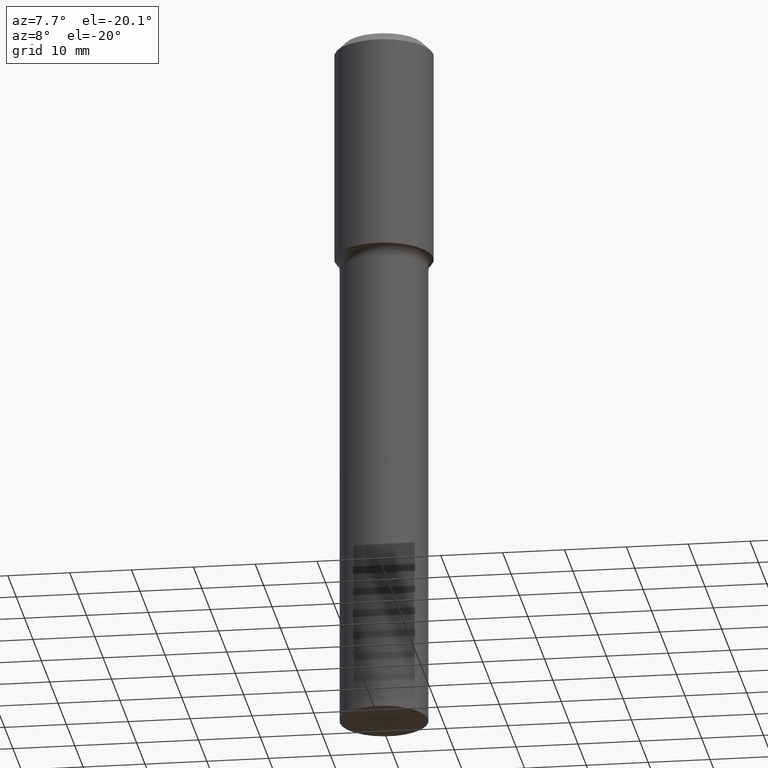
[diagram: clean part render]
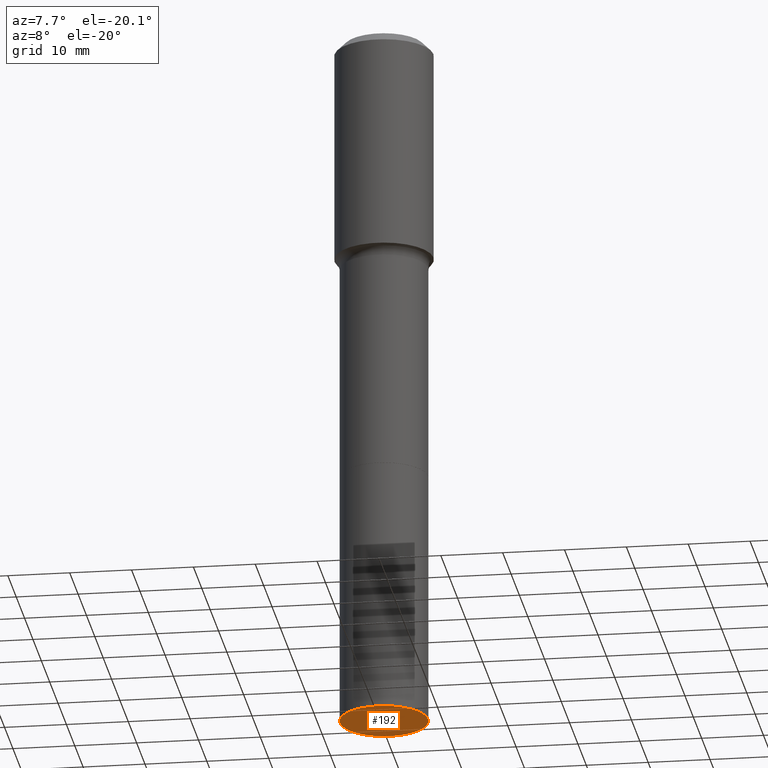
[diagram: same view with one face highlighted and labeled with its STEP entity id]
A machine part, auxiliary view. The second image highlights one B-rep face of the part: STEP entity #192.
In plain terms, the highlighted planar face has unit normal (0, -0, -1).
Its self-contained STEP definition (entity closure, byte-faithful):
#19 = AXIS2_PLACEMENT_3D ( 'NONE', #451, #206, #326 ) ;
#35 = EDGE_LOOP ( 'NONE', ( #113, #275 ) ) ;
#88 = CIRCLE ( 'NONE', #366, 0.2812500000000000000 ) ;
#113 = ORIENTED_EDGE ( 'NONE', *, *, #400, .F. ) ;
#116 = VERTEX_POINT ( 'NONE', #333 ) ;
#129 = EDGE_CURVE ( 'NONE', #116, #376, #88, .T. ) ;
#134 = DIRECTION ( 'NONE',  ( 1.000000000000000000, -6.982962677686269866E-15, 0.000000000000000000 ) ) ;
#139 = CARTESIAN_POINT ( 'NONE',  ( 1.107210456688382298E-28, -1.580803090974622389E-14, -4.527599999999999625 ) ) ;
#192 = ADVANCED_FACE ( 'NONE', ( #292 ), #252, .T. ) ;
#206 = DIRECTION ( 'NONE',  ( 2.438088387897960049E-29, -3.491481338843145188E-15, -1.000000000000000000 ) ) ;
#218 = CARTESIAN_POINT ( 'NONE',  ( 0.2812500000000000000, -1.777198916284548562E-14, -4.527599999999999625 ) ) ;
#221 = AXIS2_PLACEMENT_3D ( 'NONE', #509, #459, #467 ) ;
#252 = PLANE ( 'NONE',  #19 ) ;
#275 = ORIENTED_EDGE ( 'NONE', *, *, #129, .F. ) ;
#292 = FACE_OUTER_BOUND ( 'NONE', #35, .T. ) ;
#326 = DIRECTION ( 'NONE',  ( -1.000000000000000000, 6.982962677686265922E-15, -4.876176775795935793E-29 ) ) ;
#333 = CARTESIAN_POINT ( 'NONE',  ( -0.2812500000000000000, -1.095883495225551399E-14, -4.527599999999999625 ) ) ;
#365 = DIRECTION ( 'NONE',  ( -2.445468806185136597E-29, 3.491481338843145583E-15, 1.000000000000000000 ) ) ;
#366 = AXIS2_PLACEMENT_3D ( 'NONE', #139, #365, #134 ) ;
#376 = VERTEX_POINT ( 'NONE', #218 ) ;
#400 = EDGE_CURVE ( 'NONE', #376, #116, #477, .T. ) ;
#451 = CARTESIAN_POINT ( 'NONE',  ( 1.107210456688382298E-28, -1.580803090974622389E-14, -4.527599999999999625 ) ) ;
#459 = DIRECTION ( 'NONE',  ( -2.445468806185136597E-29, 3.491481338843145583E-15, 1.000000000000000000 ) ) ;
#467 = DIRECTION ( 'NONE',  ( 1.000000000000000000, -6.982962677686269866E-15, 0.000000000000000000 ) ) ;
#477 = CIRCLE ( 'NONE', #221, 0.2812500000000000000 ) ;
#509 = CARTESIAN_POINT ( 'NONE',  ( 1.107210456688382298E-28, -1.580803090974622389E-14, -4.527599999999999625 ) ) ;